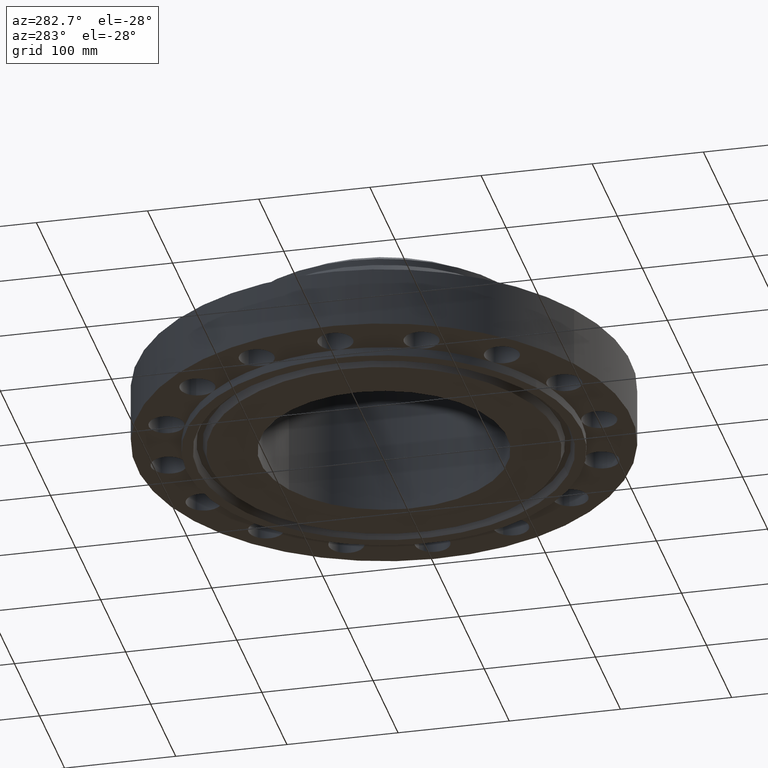
[diagram: clean part render]
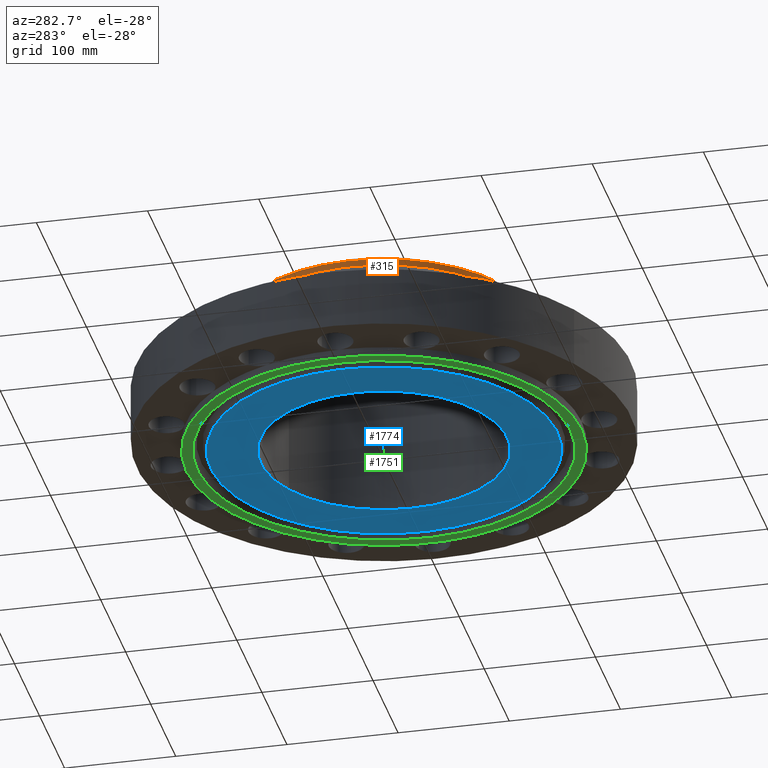
[diagram: same view with three faces highlighted in distinct colors, each labeled with its STEP entity id]
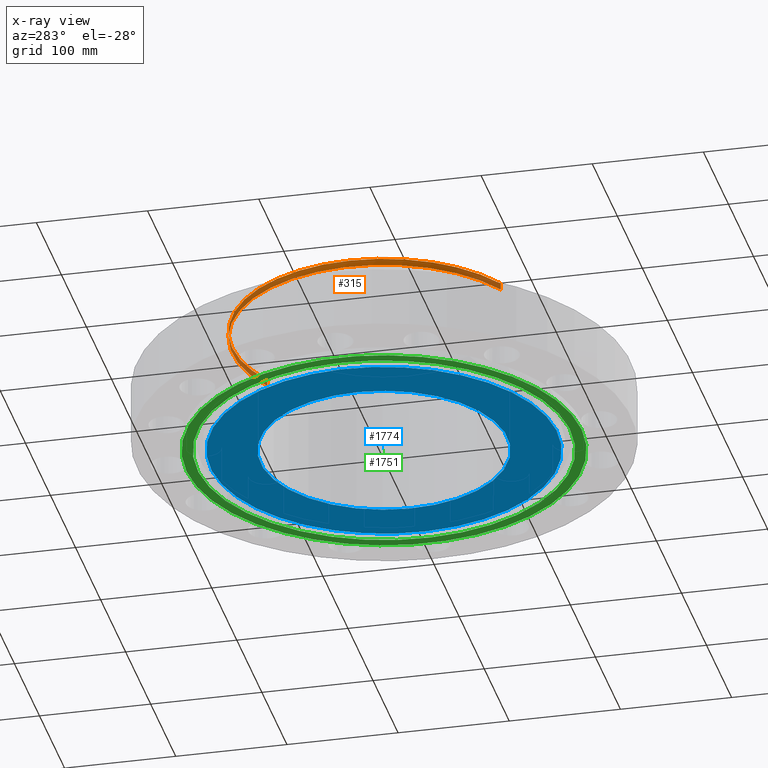
[diagram: x-ray of the same camera — body ghosted, the three highlighted faces saturated]
A machine part, auxiliary view with three faces highlighted in distinct colors.
The next image is the same camera in x-ray (body ghosted, the three faces saturated) — at least one of them is partly hidden behind the body in this view.
Their STEP definitions:

[orange] entity #315 — the highlighted cylindrical surface (partial cylindrical patch) has radius 136.525 mm, axis along (0, 0, -1).
#247=AXIS2_PLACEMENT_3D('Circle Axis2P3D',#245,#246,$) ;
#260=AXIS2_PLACEMENT_3D('Cylinder Axis2P3D',#257,#258,#259) ;
#298=AXIS2_PLACEMENT_3D('Circle Axis2P3D',#296,#297,$) ;
#305=AXIS2_PLACEMENT_3D('Circle Axis2P3D',#303,#304,$) ;
#223=CARTESIAN_POINT('Vertex',(2.57691227001,4.71700627018,4.08578537513)) ;
#230=CARTESIAN_POINT('Vertex',(-2.57691227001,-4.71700627018,4.08578537513)) ;
#245=CARTESIAN_POINT('Axis2P3D Location',(0.,0.,4.08578537513)) ;
#257=CARTESIAN_POINT('Axis2P3D Location',(0.,0.,2.28350000001)) ;
#262=CARTESIAN_POINT('Line Origine',(-2.57691227001,-4.71700627018,4.20389561135)) ;
#266=CARTESIAN_POINT('Vertex',(-2.57691227001,-4.71700627018,4.32200584757)) ;
#269=CARTESIAN_POINT('Line Origine',(2.57691227001,4.71700627018,4.20389561135)) ;
#273=CARTESIAN_POINT('Vertex',(2.57691227001,4.71700627018,4.32200584757)) ;
#296=CARTESIAN_POINT('Axis2P3D Location',(0.,0.,4.32200584757)) ;
#300=CARTESIAN_POINT('Vertex',(-2.57691227001,4.71700627018,4.32200584757)) ;
#303=CARTESIAN_POINT('Axis2P3D Location',(0.,0.,4.32200584757)) ;
#246=DIRECTION('Axis2P3D Direction',(0.,0.,-0.0393700787402)) ;
#258=DIRECTION('Axis2P3D Direction',(0.,0.,-0.0393700787402)) ;
#259=DIRECTION('Axis2P3D XDirection',(-0.0188750212049,-0.0345504945626,0.)) ;
#263=DIRECTION('Vector Direction',(0.,0.,-0.0393700787402)) ;
#270=DIRECTION('Vector Direction',(0.,0.,-0.0393700787402)) ;
#297=DIRECTION('Axis2P3D Direction',(0.,0.,-0.0393700787402)) ;
#304=DIRECTION('Axis2P3D Direction',(0.,0.,-0.0393700787402)) ;
#264=VECTOR('Line Direction',#263,0.0393700787402) ;
#271=VECTOR('Line Direction',#270,0.0393700787402) ;
#309=ORIENTED_EDGE('',*,*,#275,.F.) ;
#310=ORIENTED_EDGE('',*,*,#249,.F.) ;
#311=ORIENTED_EDGE('',*,*,#268,.T.) ;
#312=ORIENTED_EDGE('',*,*,#302,.F.) ;
#313=ORIENTED_EDGE('',*,*,#307,.T.) ;
#315=ADVANCED_FACE('PartBody',(#314),#261,.T.) ;
#248=CIRCLE('generated circle',#247,5.37500000002) ;
#299=CIRCLE('generated circle',#298,5.37500000002) ;
#306=CIRCLE('generated circle',#305,5.37500000002) ;
#261=CYLINDRICAL_SURFACE('generated cylinder',#260,5.37500000002) ;
#249=EDGE_CURVE('',#231,#224,#248,.T.) ;
#268=EDGE_CURVE('',#231,#267,#265,.F.) ;
#275=EDGE_CURVE('',#224,#274,#272,.F.) ;
#302=EDGE_CURVE('',#301,#267,#299,.F.) ;
#307=EDGE_CURVE('',#301,#274,#306,.T.) ;
#308=EDGE_LOOP('',(#309,#310,#311,#312,#313)) ;
#314=FACE_OUTER_BOUND('',#308,.T.) ;
#265=LINE('Line',#262,#264) ;
#272=LINE('Line',#269,#271) ;
#224=VERTEX_POINT('',#223) ;
#231=VERTEX_POINT('',#230) ;
#267=VERTEX_POINT('',#266) ;
#274=VERTEX_POINT('',#273) ;
#301=VERTEX_POINT('',#300) ;

[blue] entity #1774 — the highlighted planar face has unit normal (0, 0, -1).
#435=AXIS2_PLACEMENT_3D('Circle Axis2P3D',#433,#434,$) ;
#454=AXIS2_PLACEMENT_3D('Circle Axis2P3D',#452,#453,$) ;
#1727=AXIS2_PLACEMENT_3D('Plane Axis2P3D',#1724,#1725,#1726) ;
#1754=AXIS2_PLACEMENT_3D('Circle Axis2P3D',#1752,#1753,$) ;
#1763=AXIS2_PLACEMENT_3D('Circle Axis2P3D',#1761,#1762,$) ;
#430=CARTESIAN_POINT('Vertex',(-2.0974867314,-3.83942370829,-0.313000000001)) ;
#433=CARTESIAN_POINT('Axis2P3D Location',(0.,0.,-0.313000000001)) ;
#437=CARTESIAN_POINT('Vertex',(2.0974867314,3.83942370829,-0.313000000001)) ;
#452=CARTESIAN_POINT('Axis2P3D Location',(0.,0.,-0.313000000001)) ;
#1724=CARTESIAN_POINT('Axis2P3D Location',(0.,4.37500000002,-0.313000000001)) ;
#1752=CARTESIAN_POINT('Axis2P3D Location',(2.23792987641E-015,5.59482469102E-016,-0.313000000001)) ;
#1756=CARTESIAN_POINT('Vertex',(-2.94391251981,5.38879572131,-0.313000000001)) ;
#1758=CARTESIAN_POINT('Vertex',(2.94391251981,-5.38879572131,-0.313000000001)) ;
#1761=CARTESIAN_POINT('Axis2P3D Location',(-1.67844740731E-015,1.1189649382E-015,-0.313000000001)) ;
#434=DIRECTION('Axis2P3D Direction',(0.,0.,-0.0393700787402)) ;
#453=DIRECTION('Axis2P3D Direction',(0.,0.,-0.0393700787402)) ;
#1725=DIRECTION('Axis2P3D Direction',(0.,0.,-0.0393700787402)) ;
#1726=DIRECTION('Axis2P3D XDirection',(0.0393700787402,0.,0.)) ;
#1753=DIRECTION('Axis2P3D Direction',(0.,0.,-0.0393700787402)) ;
#1762=DIRECTION('Axis2P3D Direction',(0.,0.,-0.0393700787402)) ;
#1767=ORIENTED_EDGE('',*,*,#1760,.T.) ;
#1768=ORIENTED_EDGE('',*,*,#1765,.T.) ;
#1771=ORIENTED_EDGE('',*,*,#456,.F.) ;
#1772=ORIENTED_EDGE('',*,*,#439,.F.) ;
#1773=FACE_BOUND('',#1770,.T.) ;
#1774=ADVANCED_FACE('PartBody',(#1769,#1773),#1728,.T.) ;
#436=CIRCLE('generated circle',#435,4.37500000002) ;
#455=CIRCLE('generated circle',#454,4.37500000002) ;
#1755=CIRCLE('generated circle',#1754,6.14050000002) ;
#1764=CIRCLE('generated circle',#1763,6.14050000002) ;
#439=EDGE_CURVE('',#431,#438,#436,.T.) ;
#456=EDGE_CURVE('',#438,#431,#455,.T.) ;
#1760=EDGE_CURVE('',#1757,#1759,#1755,.T.) ;
#1765=EDGE_CURVE('',#1759,#1757,#1764,.T.) ;
#1766=EDGE_LOOP('',(#1767,#1768)) ;
#1770=EDGE_LOOP('',(#1771,#1772)) ;
#1769=FACE_OUTER_BOUND('',#1766,.T.) ;
#1728=PLANE('',#1727) ;
#431=VERTEX_POINT('',#430) ;
#438=VERTEX_POINT('',#437) ;
#1757=VERTEX_POINT('',#1756) ;
#1759=VERTEX_POINT('',#1758) ;

[green] entity #1751 — the highlighted planar face has unit normal (0, 0, -1).
#525=AXIS2_PLACEMENT_3D('Circle Axis2P3D',#523,#524,$) ;
#622=AXIS2_PLACEMENT_3D('Circle Axis2P3D',#620,#621,$) ;
#1727=AXIS2_PLACEMENT_3D('Plane Axis2P3D',#1724,#1725,#1726) ;
#1735=AXIS2_PLACEMENT_3D('Circle Axis2P3D',#1733,#1734,$) ;
#1744=AXIS2_PLACEMENT_3D('Circle Axis2P3D',#1742,#1743,$) ;
#523=CARTESIAN_POINT('Axis2P3D Location',(0.,0.,-0.313000000001)) ;
#527=CARTESIAN_POINT('Vertex',(-3.35597877024,-6.14307793326,-0.313000000001)) ;
#529=CARTESIAN_POINT('Vertex',(3.35597877024,6.14307793326,-0.313000000001)) ;
#620=CARTESIAN_POINT('Axis2P3D Location',(0.,0.,-0.313000000001)) ;
#1724=CARTESIAN_POINT('Axis2P3D Location',(0.,4.37500000002,-0.313000000001)) ;
#1733=CARTESIAN_POINT('Axis2P3D Location',(-8.39223703654E-016,-1.1189649382E-015,-0.313000000001)) ;
#1737=CARTESIAN_POINT('Vertex',(3.16876309742,-5.80038194284,-0.313000000001)) ;
#1739=CARTESIAN_POINT('Vertex',(-3.16876309742,5.80038194284,-0.313000000001)) ;
#1742=CARTESIAN_POINT('Axis2P3D Location',(0.,-5.59482469102E-016,-0.313000000001)) ;
#524=DIRECTION('Axis2P3D Direction',(0.,0.,-0.0393700787402)) ;
#621=DIRECTION('Axis2P3D Direction',(0.,0.,-0.0393700787402)) ;
#1725=DIRECTION('Axis2P3D Direction',(0.,0.,-0.0393700787402)) ;
#1726=DIRECTION('Axis2P3D XDirection',(0.0393700787402,0.,0.)) ;
#1734=DIRECTION('Axis2P3D Direction',(0.,0.,-0.0393700787402)) ;
#1743=DIRECTION('Axis2P3D Direction',(0.,0.,-0.0393700787402)) ;
#1730=ORIENTED_EDGE('',*,*,#531,.T.) ;
#1731=ORIENTED_EDGE('',*,*,#624,.T.) ;
#1748=ORIENTED_EDGE('',*,*,#1741,.F.) ;
#1749=ORIENTED_EDGE('',*,*,#1746,.F.) ;
#1750=FACE_BOUND('',#1747,.T.) ;
#1751=ADVANCED_FACE('PartBody',(#1732,#1750),#1728,.T.) ;
#526=CIRCLE('generated circle',#525,7.00000000003) ;
#623=CIRCLE('generated circle',#622,7.00000000003) ;
#1736=CIRCLE('generated circle',#1735,6.60950000003) ;
#1745=CIRCLE('generated circle',#1744,6.60950000003) ;
#531=EDGE_CURVE('',#528,#530,#526,.T.) ;
#624=EDGE_CURVE('',#530,#528,#623,.T.) ;
#1741=EDGE_CURVE('',#1738,#1740,#1736,.T.) ;
#1746=EDGE_CURVE('',#1740,#1738,#1745,.T.) ;
#1729=EDGE_LOOP('',(#1730,#1731)) ;
#1747=EDGE_LOOP('',(#1748,#1749)) ;
#1732=FACE_OUTER_BOUND('',#1729,.T.) ;
#1728=PLANE('',#1727) ;
#528=VERTEX_POINT('',#527) ;
#530=VERTEX_POINT('',#529) ;
#1738=VERTEX_POINT('',#1737) ;
#1740=VERTEX_POINT('',#1739) ;